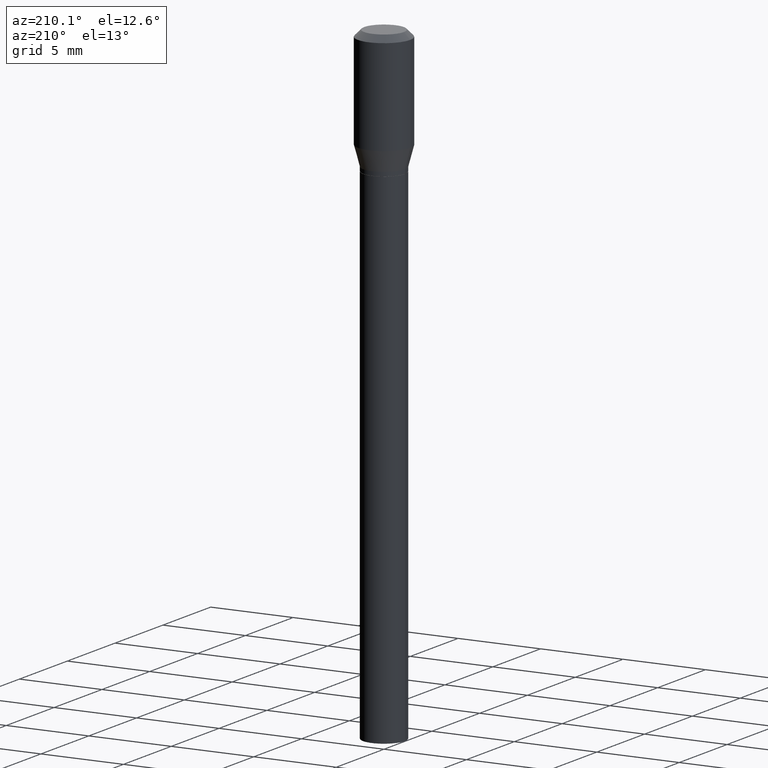
[diagram: clean part render]
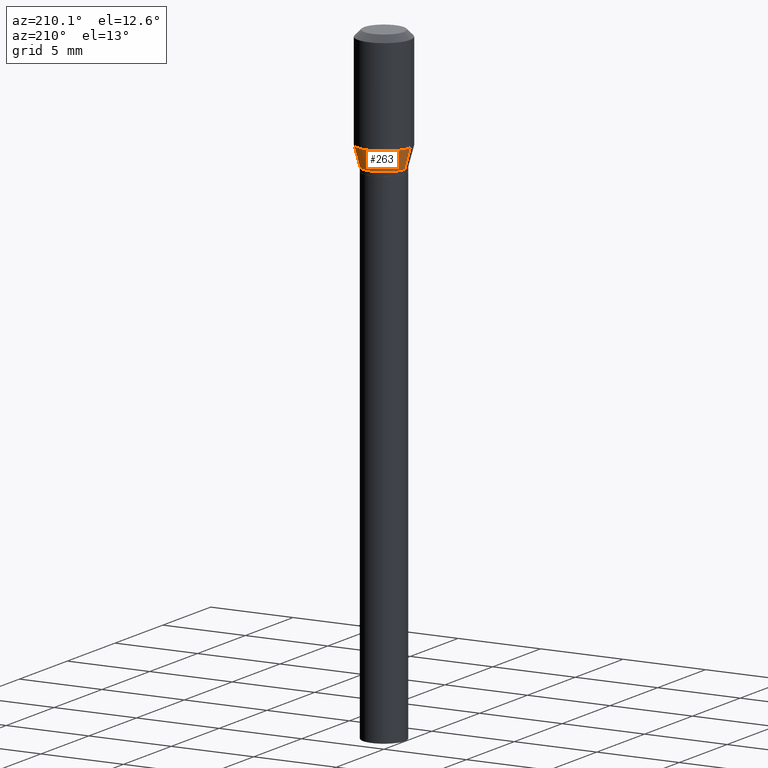
[diagram: same view with one face highlighted and labeled with its STEP entity id]
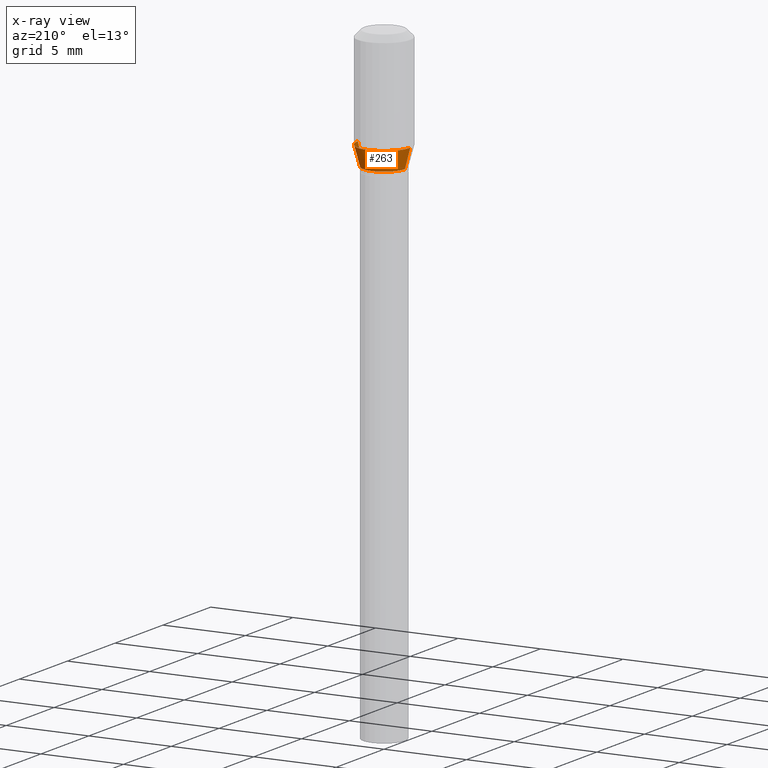
[diagram: x-ray of the same camera — body ghosted, the highlighted face saturated]
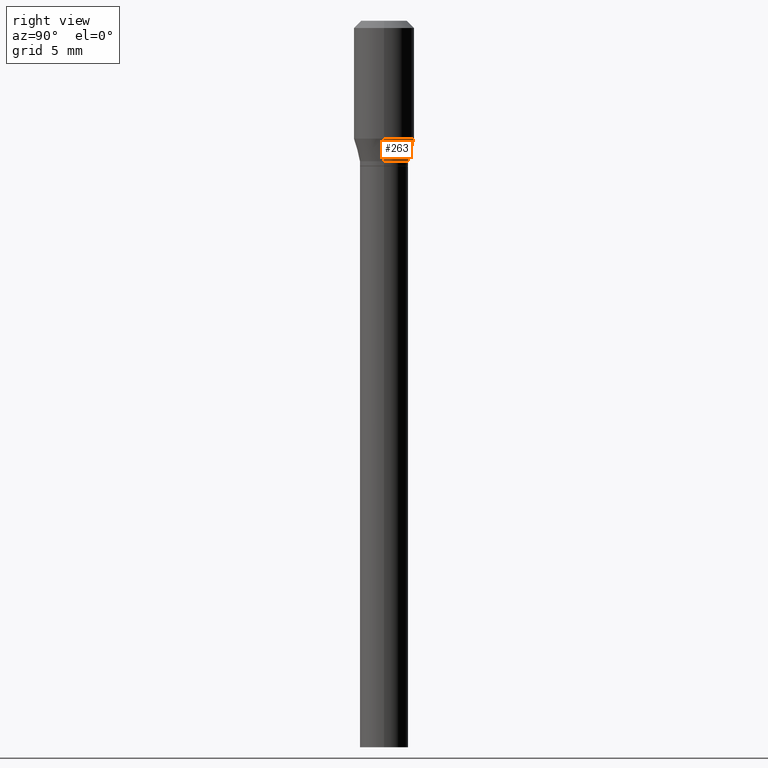
[diagram: same view with one face highlighted and labeled with its STEP entity id]
A machine part, auxiliary view. The second image highlights one B-rep face of the part: STEP entity #263.
The next image is the same camera in x-ray: the body ghosted, the highlighted face saturated — about 0% of this face is hidden behind the body in this view.
A second angle (right view) of the same face is appended — the face is thin or edge-on in the first view.
In plain terms, the highlighted conical surface has half-angle 15 deg.
Its self-contained STEP definition (entity closure, byte-faithful):
#8 = CARTESIAN_POINT ( 'NONE',  ( -0.05000000000000000278, -6.572582203844627808E-16, -0.2900000000000002021 ) ) ;
#32 = DIRECTION ( 'NONE',  ( 1.000000000000000000, -6.982962677686265133E-15, 0.000000000000000000 ) ) ;
#71 = EDGE_CURVE ( 'NONE', #451, #366, #101, .T. ) ;
#72 = ORIENTED_EDGE ( 'NONE', *, *, #384, .T. ) ;
#101 = LINE ( 'NONE', #352, #158 ) ;
#102 = DIRECTION ( 'NONE',  ( 1.000000000000000000, -6.982962677686264344E-15, 0.000000000000000000 ) ) ;
#105 = DIRECTION ( 'NONE',  ( 1.000000000000000000, -6.982962677686264344E-15, 0.000000000000000000 ) ) ;
#111 = CARTESIAN_POINT ( 'NONE',  ( 0.06250000000000000000, -1.286084933741889410E-15, -0.2433493649053893038 ) ) ;
#112 = ORIENTED_EDGE ( 'NONE', *, *, #71, .F. ) ;
#118 = VERTEX_POINT ( 'NONE', #212 ) ;
#120 = CIRCLE ( 'NONE', #306, 0.05000000000000000278 ) ;
#128 = EDGE_CURVE ( 'NONE', #366, #156, #308, .T. ) ;
#142 = CARTESIAN_POINT ( 'NONE',  ( 7.091859537936900503E-30, -1.012529588264512893E-15, -0.2900000000000002021 ) ) ;
#148 = DIRECTION ( 'NONE',  ( -0.2588190451025211281, 5.211531920934547886E-15, 0.9659258262890679791 ) ) ;
#155 = VECTOR ( 'NONE', #148, 39.37007874015748854 ) ;
#156 = VERTEX_POINT ( 'NONE', #324 ) ;
#158 = VECTOR ( 'NONE', #322, 39.37007874015748854 ) ;
#178 = DIRECTION ( 'NONE',  ( -2.445468806185136597E-29, 3.491481338843145583E-15, 1.000000000000000000 ) ) ;
#210 = CARTESIAN_POINT ( 'NONE',  ( 0.05000000000000000278, -1.361677722148826229E-15, -0.2900000000000002021 ) ) ;
#212 = CARTESIAN_POINT ( 'NONE',  ( -0.05000000000000000278, -5.314093884604490017E-16, -0.2900000000000002021 ) ) ;
#223 = LINE ( 'NONE', #8, #155 ) ;
#255 = CARTESIAN_POINT ( 'NONE',  ( 7.091859537936900503E-30, -1.012529588264512893E-15, -0.2900000000000002021 ) ) ;
#263 = ADVANCED_FACE ( 'NONE', ( #444 ), #359, .T. ) ;
#272 = ORIENTED_EDGE ( 'NONE', *, *, #128, .F. ) ;
#282 = CARTESIAN_POINT ( 'NONE',  ( 5.951032808810935240E-30, -8.496497663864978389E-16, -0.2433493649053893038 ) ) ;
#306 = AXIS2_PLACEMENT_3D ( 'NONE', #142, #358, #102 ) ;
#308 = CIRCLE ( 'NONE', #340, 0.06250000000000000000 ) ;
#314 = AXIS2_PLACEMENT_3D ( 'NONE', #255, #178, #105 ) ;
#322 = DIRECTION ( 'NONE',  ( 0.2588190451025211281, 1.565188264969622954E-15, 0.9659258262890679791 ) ) ;
#324 = CARTESIAN_POINT ( 'NONE',  ( -0.06250000000000000000, -4.055605565364353213E-16, -0.2433493649053893038 ) ) ;
#340 = AXIS2_PLACEMENT_3D ( 'NONE', #282, #442, #32 ) ;
#352 = CARTESIAN_POINT ( 'NONE',  ( 0.05000000000000000278, -1.361677722148826229E-15, -0.2900000000000002021 ) ) ;
#358 = DIRECTION ( 'NONE',  ( -2.445468806185136597E-29, 3.491481338843145583E-15, 1.000000000000000000 ) ) ;
#359 = CONICAL_SURFACE ( 'NONE', #314, 0.05000000000000000278, 0.2617993877991498519 ) ;
#366 = VERTEX_POINT ( 'NONE', #111 ) ;
#378 = EDGE_LOOP ( 'NONE', ( #402, #72, #272, #112 ) ) ;
#384 = EDGE_CURVE ( 'NONE', #118, #156, #223, .T. ) ;
#402 = ORIENTED_EDGE ( 'NONE', *, *, #419, .T. ) ;
#419 = EDGE_CURVE ( 'NONE', #451, #118, #120, .T. ) ;
#442 = DIRECTION ( 'NONE',  ( -2.445468806185136597E-29, 3.491481338843145583E-15, 1.000000000000000000 ) ) ;
#444 = FACE_OUTER_BOUND ( 'NONE', #378, .T. ) ;
#451 = VERTEX_POINT ( 'NONE', #210 ) ;